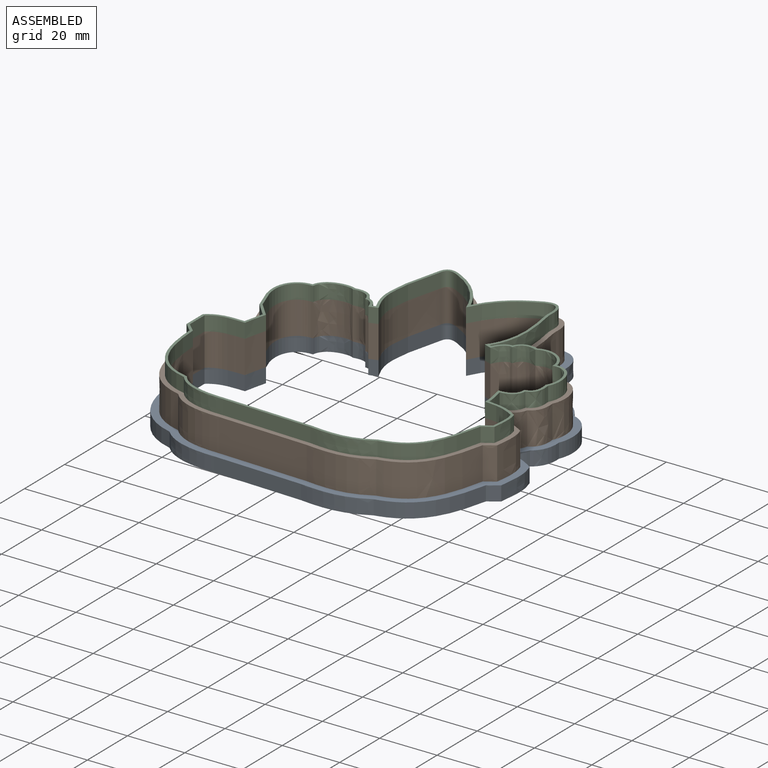
[diagram: assembled view]
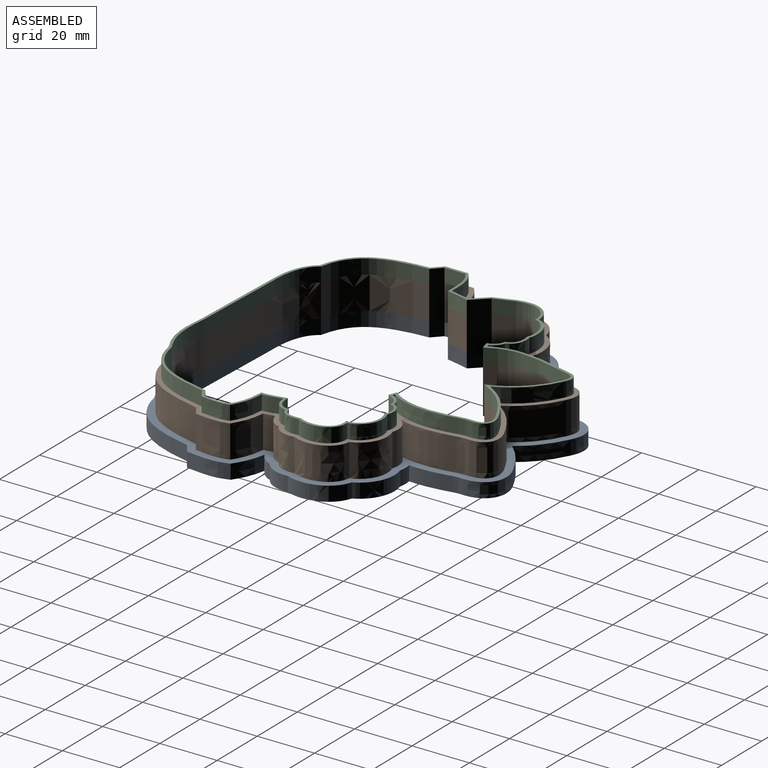
[diagram: assembled view, second angle]
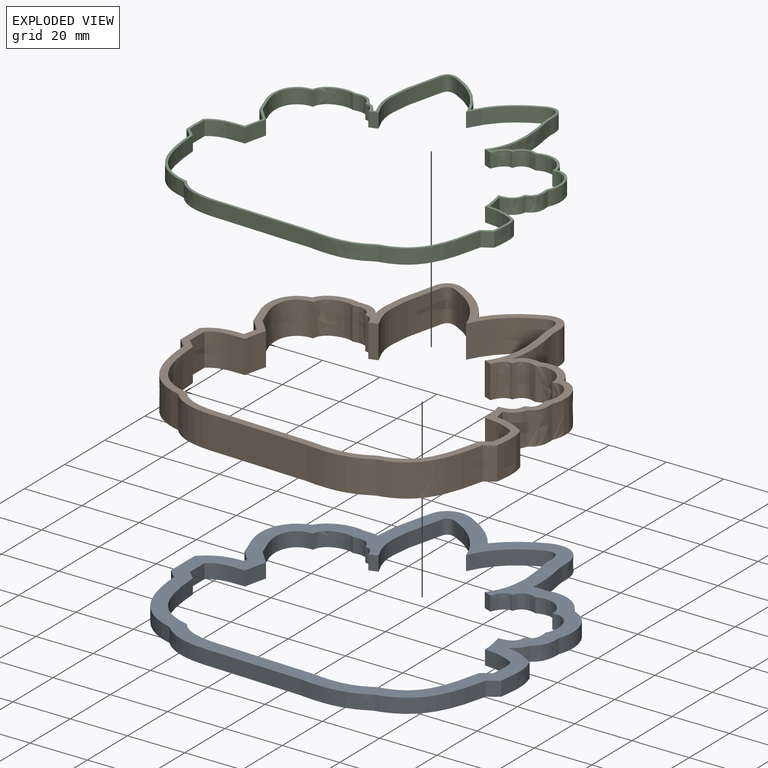
[diagram: exploded view]
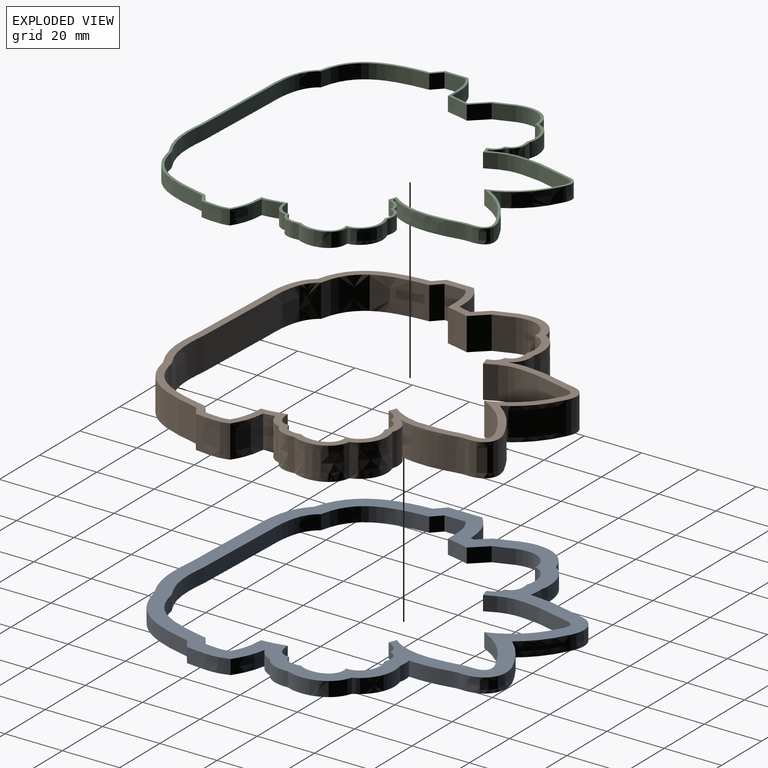
[diagram: exploded view, second angle]
ASSEMBLY  parts=3 mates=2
PART A: 67 faces, bbox 125.6x123.7x9.8 mm
  f0: plane 125.64x123.72mm, normal (0,0,1), area 2236mm2, adj f2,f3,f4,f5,f6,f7,f8,f9
  f1: plane 125.64x123.72mm, normal (0,0,-1), area 2236mm2, adj f2,f3,f4,f5,f6,f7,f8,f9
  f2: extruded ~28.55x18.44mm, area 186.6mm2, adj f0,f1,f3,f31
  f3: extruded ~20.02x6.33mm, area 109.9mm2, adj f0,f1,f2,f4
  f4: plane 31.02x5.08mm, normal (-0.04,-1,0), area 157.7mm2, adj f0,f1,f3,f5
  f5: extruded ~22.97x5.08mm, area 120.3mm2, adj f0,f1,f4,f6
  f6: extruded ~26.15x20.81mm, area 181.9mm2, adj f0,f1,f5,f7
  f7: extruded ~5.08x3.62mm, area 22.2mm2, adj f0,f1,f6,f8
  f8: extruded ~14.87x5.08mm, area 77.2mm2, adj f0,f1,f7,f9
  f9: extruded ~10.59x5.08mm, area 59mm2, adj f0,f1,f8,f10
  f10: extruded ~5.08x4.75mm, area 33.2mm2, adj f0,f1,f9,f11
  f11: extruded ~9.04x5.08mm, area 52.3mm2, adj f0,f1,f10,f12
  f12: extruded ~17.36x7.96mm, area 106.5mm2, adj f0,f1,f11,f13
  f13: extruded ~14.62x7.21mm, area 89.1mm2, adj f0,f1,f12,f14
  f14: extruded ~5.08x4.32mm, area 22.1mm2, adj f0,f1,f13,f15
  f15: extruded ~10.3x5.08mm, area 52.5mm2, adj f0,f1,f14,f16
  f16: extruded ~7.42x5.08mm, area 37.9mm2, adj f0,f1,f15,f17
  f17: extruded ~12.22x9.75mm, area 94.7mm2, adj f0,f1,f16,f18
  f18: extruded ~14.04x9.9mm, area 88mm2, adj f0,f1,f17,f19
  f19: extruded ~13.22x11.15mm, area 88.8mm2, adj f0,f1,f18,f20
  f20: extruded ~11.76x5.74mm, area 75.1mm2, adj f0,f1,f19,f21
  f21: extruded ~12.91x5.08mm, area 67.5mm2, adj f0,f1,f20,f22
  f22: extruded ~7.58x5.08mm, area 38.7mm2, adj f0,f1,f21,f23
  f23: extruded ~5.08x4.69mm, area 24.1mm2, adj f0,f1,f22,f24
  f24: extruded ~14.85x5.7mm, area 85.4mm2, adj f0,f1,f23,f25
  f25: extruded ~17.8x9.13mm, area 112.3mm2, adj f0,f1,f24,f26
  f26: plane 8.01x5.08mm, normal (-0.94,-0.34,0), area 43.3mm2, adj f0,f1,f25,f27
  f27: plane 5.08x3.98mm, normal (-0.73,-0.68,0), area 27.6mm2, adj f0,f1,f26,f28
  f28: extruded ~5.08x1.37mm, area 7.2mm2, adj f0,f1,f27,f29
  f29: extruded ~13.29x5.22mm, area 74.9mm2, adj f0,f1,f28,f30
  f30: plane 11.84x5.08mm, normal (-1,0,0), area 60.2mm2, adj f0,f1,f29,f31
  f31: plane 5.08x3.32mm, normal (-0.69,-0.72,0), area 23.4mm2, adj f0,f1,f2,f30
  f32: extruded ~26.31x16.39mm, area 172.7mm2, adj f0,f1,f33,f66
  f33: extruded ~17.21x5.78mm, area 96mm2, adj f0,f1,f32,f34
  f34: plane 31.32x5.08mm, normal (0.04,1,0), area 159.2mm2, adj f0,f1,f33,f35
  f35: extruded ~20.8x5.08mm, area 109.3mm2, adj f0,f1,f34,f36
  f36: extruded ~24.48x18.09mm, area 166.9mm2, adj f0,f1,f35,f37
  f37: extruded ~5.08x3.31mm, area 19.9mm2, adj f0,f1,f36,f38
  f38: extruded ~8.8x5.08mm, area 45mm2, adj f0,f1,f37,f39
  f39: extruded ~11.15x5.08mm, area 59.6mm2, adj f0,f1,f38,f40
  f40: extruded ~8.39x5.08mm, area 43.2mm2, adj f0,f1,f39,f41
  f41: extruded ~5.9x5.08mm, area 43.1mm2, adj f0,f1,f40,f42
  f42: extruded ~6.42x5.08mm, area 40.8mm2, adj f0,f1,f41,f43
  f43: extruded ~11.73x7.06mm, area 83.1mm2, adj f0,f1,f42,f44
  f44: extruded ~10.24x6.97mm, area 73mm2, adj f0,f1,f43,f45
  f45: extruded ~6.4x5.08mm, area 40mm2, adj f0,f1,f44,f46
  f46: extruded ~5.08x4.85mm, area 34.8mm2, adj f0,f1,f45,f47
  f47: plane 5.08x2.66mm, normal (-0.35,-0.94,0), area 14.4mm2, adj f0,f1,f46,f48
  f48: extruded ~20.46x5.08mm, area 109mm2, adj f0,f1,f47,f49
  f49: extruded ~8.26x5.08mm, area 42.4mm2, adj f0,f1,f48,f50
  f50: extruded ~5.18x5.08mm, area 42.6mm2, adj f0,f1,f49,f51
  f51: extruded ~16.55x15.32mm, area 117.2mm2, adj f0,f1,f50,f52
  f52: extruded ~16.68x14.88mm, area 116.7mm2, adj f0,f1,f51,f53
  f53: extruded ~5.08x4.63mm, area 29.4mm2, adj f0,f1,f52,f54
  f54: extruded ~12.35x5.08mm, area 64.6mm2, adj f0,f1,f53,f55
  f55: extruded ~17.89x5.08mm, area 93.7mm2, adj f0,f1,f54,f56
  f56: plane 5.08x2.98mm, normal (0.28,-0.96,0), area 15.8mm2, adj f0,f1,f55,f57
  f57: extruded ~5.08x3.75mm, area 28.7mm2, adj f0,f1,f56,f58
  f58: extruded ~6.73x5.08mm, area 43mm2, adj f0,f1,f57,f59
  f59: extruded ~10.53x5.32mm, area 67.1mm2, adj f0,f1,f58,f60
  f60: extruded ~11.56x7.72mm, area 82.6mm2, adj f0,f1,f59,f61
  f61: plane 6.86x5.08mm, normal (0.94,0.34,0), area 37.1mm2, adj f0,f1,f60,f62
  f62: plane 5.25x5.08mm, normal (0.73,0.68,0), area 36.3mm2, adj f0,f1,f61,f63
  f63: extruded ~7.87x5.08mm, area 41.1mm2, adj f0,f1,f62,f64
  f64: extruded ~12.33x5.08mm, area 65.5mm2, adj f0,f1,f63,f65
  f65: plane 7.31x5.08mm, normal (1,0,0), area 37.1mm2, adj f0,f1,f64,f66
  f66: plane 5.08x3.19mm, normal (0.69,0.72,0), area 22.5mm2, adj f0,f1,f32,f65
PART B: 69 faces, bbox 118.4x116.4x13.9 mm
  f0: plane 118.35x116.43mm, normal (0,0,1), area 1131.5mm2, adj f2,f3,f4,f5,f6,f7,f8,f9
  f1: plane 118.35x116.43mm, normal (0,0,-1), area 1131.5mm2, adj f2,f3,f4,f5,f6,f7,f8,f9
  f2: extruded ~27.44x17.38mm, area 403.8mm2, adj f0,f1,f3,f33
  f3: extruded ~18.65x11.43mm, area 231.9mm2, adj f0,f1,f2,f4
  f4: plane 31.17x11.43mm, normal (-0.04,-1,0), area 356.5mm2, adj f0,f1,f3,f5
  f5: extruded ~21.89x11.43mm, area 258.3mm2, adj f0,f1,f4,f6
  f6: extruded ~25.35x19.46mm, area 392.8mm2, adj f0,f1,f5,f7
  f7: extruded ~11.43x3.46mm, area 47.4mm2, adj f0,f1,f6,f8
  f8: extruded ~11.84x11.43mm, area 137.2mm2, adj f0,f1,f7,f9
  f9: extruded ~11.43x10.85mm, area 133.3mm2, adj f0,f1,f8,f10
  f10: extruded ~11.43x3.79mm, area 44mm2, adj f0,f1,f9,f11
  f11: extruded ~11.43x5.21mm, area 86.4mm2, adj f0,f1,f10,f12
  f12: extruded ~11.43x7.78mm, area 103.7mm2, adj f0,f1,f11,f13
  f13: extruded ~14.72x11.43mm, area 211.3mm2, adj f0,f1,f12,f14
  f14: extruded ~12.62x11.43mm, area 180.4mm2, adj f0,f1,f13,f15
  f15: extruded ~11.43x7.87mm, area 102.1mm2, adj f0,f1,f14,f16
  f16: extruded ~11.43x0.18mm, area 2mm2, adj f0,f1,f15,f17
  f17: extruded ~15.29x11.43mm, area 176.4mm2, adj f0,f1,f16,f18
  f18: extruded ~11.43x7.84mm, area 90.5mm2, adj f0,f1,f17,f19
  f19: extruded ~11.43x8.7mm, area 154mm2, adj f0,f1,f18,f20
  f20: extruded ~15.25x12.03mm, area 225mm2, adj f0,f1,f19,f21
  f21: extruded ~14.1x13.33mm, area 225.5mm2, adj f0,f1,f20,f22
  f22: extruded ~11.43x8.2mm, area 117.6mm2, adj f0,f1,f21,f23
  f23: extruded ~12.63x11.43mm, area 148.5mm2, adj f0,f1,f22,f24
  f24: extruded ~12.85x11.43mm, area 147.8mm2, adj f0,f1,f23,f25
  f25: extruded ~11.43x8.08mm, area 107.4mm2, adj f0,f1,f24,f26
  f26: extruded ~12.89x11.43mm, area 171.5mm2, adj f0,f1,f25,f27
  f27: extruded ~14.77x11.43mm, area 217.6mm2, adj f0,f1,f26,f28
  f28: plane 11.43x7.44mm, normal (-0.94,-0.34,0), area 90.5mm2, adj f0,f1,f27,f29
  f29: plane 11.43x4.63mm, normal (-0.73,-0.68,0), area 72mm2, adj f0,f1,f28,f30
  f30: extruded ~11.43x4.62mm, area 54.4mm2, adj f0,f1,f29,f31
  f31: extruded ~12.76x11.43mm, area 157.6mm2, adj f0,f1,f30,f32
  f32: plane 11.43x9.58mm, normal (-1,0,0), area 109.5mm2, adj f0,f1,f31,f33
  f33: plane 11.43x3.25mm, normal (-0.69,-0.72,0), area 51.5mm2, adj f0,f1,f2,f32
  f34: extruded ~26.31x16.39mm, area 388.6mm2, adj f0,f1,f35,f68
  f35: extruded ~17.21x11.43mm, area 216mm2, adj f0,f1,f34,f36
  f36: plane 31.32x11.43mm, normal (0.04,1,0), area 358.2mm2, adj f0,f1,f35,f37
  f37: extruded ~20.8x11.43mm, area 245.9mm2, adj f0,f1,f36,f38
  f38: extruded ~24.48x18.09mm, area 375.5mm2, adj f0,f1,f37,f39
  f39: extruded ~11.43x3.31mm, area 44.8mm2, adj f0,f1,f38,f40
  f40: extruded ~11.43x8.8mm, area 101.3mm2, adj f0,f1,f39,f41
  f41: extruded ~11.43x11.15mm, area 134mm2, adj f0,f1,f40,f42
  f42: extruded ~11.43x8.39mm, area 97.2mm2, adj f0,f1,f41,f43
  f43: extruded ~11.43x5.9mm, area 97mm2, adj f0,f1,f42,f44
  f44: extruded ~11.43x6.42mm, area 91.8mm2, adj f0,f1,f43,f45
  f45: extruded ~11.73x11.43mm, area 186.9mm2, adj f0,f1,f44,f46
  f46: extruded ~11.43x10.24mm, area 164.2mm2, adj f0,f1,f45,f47
  f47: extruded ~11.43x6.4mm, area 89.9mm2, adj f0,f1,f46,f48
  f48: extruded ~11.43x4.85mm, area 78.3mm2, adj f0,f1,f47,f49
  f49: plane 11.43x2.66mm, normal (-0.35,-0.94,0), area 32.4mm2, adj f0,f1,f48,f50
  f50: extruded ~20.46x11.43mm, area 245.2mm2, adj f0,f1,f49,f51
  f51: extruded ~11.43x8.26mm, area 95.3mm2, adj f0,f1,f50,f52
  f52: extruded ~11.43x5.18mm, area 95.9mm2, adj f0,f1,f51,f53
  f53: extruded ~16.55x15.32mm, area 263.8mm2, adj f0,f1,f52,f54
  f54: extruded ~16.68x14.88mm, area 262.6mm2, adj f0,f1,f53,f55
  f55: extruded ~11.43x4.63mm, area 66.1mm2, adj f0,f1,f54,f56
  f56: extruded ~12.35x11.43mm, area 145.2mm2, adj f0,f1,f55,f57
  f57: extruded ~17.89x11.43mm, area 210.9mm2, adj f0,f1,f56,f58
  f58: plane 11.43x2.98mm, normal (0.28,-0.96,0), area 35.5mm2, adj f0,f1,f57,f59
  f59: extruded ~11.43x3.75mm, area 64.7mm2, adj f0,f1,f58,f60
  f60: extruded ~11.43x6.73mm, area 96.7mm2, adj f0,f1,f59,f61
  f61: extruded ~11.43x10.53mm, area 150.9mm2, adj f0,f1,f60,f62
  f62: extruded ~11.56x11.43mm, area 185.8mm2, adj f0,f1,f61,f63
  f63: plane 11.43x6.86mm, normal (0.94,0.34,0), area 83.5mm2, adj f0,f1,f62,f64
  f64: plane 11.43x5.25mm, normal (0.73,0.68,0), area 81.8mm2, adj f0,f1,f63,f65
  f65: extruded ~11.43x7.87mm, area 92.4mm2, adj f0,f1,f64,f66
  f66: extruded ~12.33x11.43mm, area 147.3mm2, adj f0,f1,f65,f67
  f67: plane 11.43x7.31mm, normal (1,0,0), area 83.6mm2, adj f0,f1,f66,f68
  f68: plane 11.43x3.19mm, normal (0.69,0.72,0), area 50.6mm2, adj f0,f1,f34,f67
PART C: 72 faces, bbox 115.5x113.6x8.1 mm
  f0: plane 115.52x113.59mm, normal (0,0,1), area 400.7mm2, adj f2,f3,f4,f5,f6,f7,f8,f9
  f1: plane 115.52x113.59mm, normal (0,0,-1), area 400.7mm2, adj f2,f3,f4,f5,f6,f7,f8,f9
  f2: extruded ~26.7x16.73mm, area 175mm2, adj f0,f1,f3,f36
  f3: extruded ~17.72x5.87mm, area 98.5mm2, adj f0,f1,f2,f4
  f4: plane 31.27x5.08mm, normal (-0.04,-1,0), area 158.9mm2, adj f0,f1,f3,f5
  f5: extruded ~21.18x5.08mm, area 111.2mm2, adj f0,f1,f4,f6
  f6: extruded ~24.8x18.57mm, area 169.6mm2, adj f0,f1,f5,f7
  f7: extruded ~5.08x3.36mm, area 20.2mm2, adj f0,f1,f6,f8
  f8: extruded ~9.86x5.08mm, area 50.5mm2, adj f0,f1,f7,f9
  f9: extruded ~11x5.08mm, area 59.2mm2, adj f0,f1,f8,f10
  f10: extruded ~6.69x5.08mm, area 34.5mm2, adj f0,f1,f9,f11
  f11: extruded ~5.71x5.08mm, area 41.4mm2, adj f0,f1,f10,f12
  f12: extruded ~6.91x5.08mm, area 42.4mm2, adj f0,f1,f11,f13
  f13: extruded ~12.81x7.03mm, area 86.3mm2, adj f0,f1,f12,f14
  f14: extruded ~11.16x6.83mm, area 75mm2, adj f0,f1,f13,f15
  f15: extruded ~6.91x5.08mm, area 41.4mm2, adj f0,f1,f14,f16
  f16: extruded ~5.08x4.78mm, area 32.8mm2, adj f0,f1,f15,f17
  f17: plane 5.08x0.73mm, normal (0.35,0.94,0), area 4mm2, adj f0,f1,f16,f18
  f18: extruded ~20.16x5.08mm, area 106.4mm2, adj f0,f1,f17,f19
  f19: extruded ~8.11x5.08mm, area 41.6mm2, adj f0,f1,f18,f20
  f20: extruded ~6.41x5.39mm, area 51.7mm2, adj f0,f1,f19,f21
  f21: extruded ~16.07x13.96mm, area 110.3mm2, adj f0,f1,f20,f22
  f22: extruded ~15.31x14.63mm, area 110mm2, adj f0,f1,f21,f23
  f23: extruded ~5.88x5.08mm, area 37.4mm2, adj f0,f1,f22,f24
  f24: extruded ~12.45x5.08mm, area 65.1mm2, adj f0,f1,f23,f25
  f25: extruded ~17.46x5.08mm, area 91mm2, adj f0,f1,f24,f26
  f26: plane 5.08x1.09mm, normal (-0.28,0.96,0), area 5.8mm2, adj f0,f1,f25,f27
  f27: extruded ~5.08x3.57mm, area 26.5mm2, adj f0,f1,f26,f28
  f28: extruded ~7.24x5.08mm, area 44.9mm2, adj f0,f1,f27,f29
  f29: extruded ~11.45x5.31mm, area 70.3mm2, adj f0,f1,f28,f30
  f30: extruded ~12.71x7.86mm, area 87.3mm2, adj f0,f1,f29,f31
  f31: plane 7.06x5.08mm, normal (-0.94,-0.34,0), area 38.2mm2, adj f0,f1,f30,f32
  f32: plane 5.08x5.04mm, normal (-0.73,-0.68,0), area 34.8mm2, adj f0,f1,f31,f33
  f33: extruded ~6.74x5.08mm, area 35.2mm2, adj f0,f1,f32,f34
  f34: extruded ~12.46x5.08mm, area 66.8mm2, adj f0,f1,f33,f35
  f35: plane 8.1x5.08mm, normal (-1,0,0), area 41.2mm2, adj f0,f1,f34,f36
  f36: plane 5.08x3.21mm, normal (-0.69,-0.72,0), area 22.6mm2, adj f0,f1,f2,f35
  f37: extruded ~26.31x16.39mm, area 172.7mm2, adj f0,f1,f38,f71
  f38: extruded ~17.21x5.78mm, area 96mm2, adj f0,f1,f37,f39
  f39: plane 31.32x5.08mm, normal (0.04,1,0), area 159.2mm2, adj f0,f1,f38,f40
  f40: extruded ~20.8x5.08mm, area 109.3mm2, adj f0,f1,f39,f41
  f41: extruded ~24.48x18.09mm, area 166.9mm2, adj f0,f1,f40,f42
  f42: extruded ~5.08x3.31mm, area 19.9mm2, adj f0,f1,f41,f43
  f43: extruded ~8.8x5.08mm, area 45mm2, adj f0,f1,f42,f44
  f44: extruded ~11.15x5.08mm, area 59.6mm2, adj f0,f1,f43,f45
  f45: extruded ~8.39x5.08mm, area 43.2mm2, adj f0,f1,f44,f46
  f46: extruded ~5.9x5.08mm, area 43.1mm2, adj f0,f1,f45,f47
  f47: extruded ~6.42x5.08mm, area 40.8mm2, adj f0,f1,f46,f48
  f48: extruded ~11.73x7.06mm, area 83.1mm2, adj f0,f1,f47,f49
  f49: extruded ~10.24x6.97mm, area 73mm2, adj f0,f1,f48,f50
  f50: extruded ~6.4x5.08mm, area 40mm2, adj f0,f1,f49,f51
  f51: extruded ~5.08x4.85mm, area 34.8mm2, adj f0,f1,f50,f52
  f52: plane 5.08x2.66mm, normal (-0.35,-0.94,0), area 14.4mm2, adj f0,f1,f51,f53
  f53: extruded ~20.46x5.08mm, area 109mm2, adj f0,f1,f52,f54
  f54: extruded ~8.26x5.08mm, area 42.4mm2, adj f0,f1,f53,f55
  f55: extruded ~5.18x5.08mm, area 42.6mm2, adj f0,f1,f54,f56
  f56: extruded ~16.55x15.32mm, area 117.2mm2, adj f0,f1,f55,f57
  f57: extruded ~16.68x14.88mm, area 116.7mm2, adj f0,f1,f56,f58
  f58: extruded ~5.08x4.63mm, area 29.4mm2, adj f0,f1,f57,f59
  f59: extruded ~12.35x5.08mm, area 64.6mm2, adj f0,f1,f58,f60
  f60: extruded ~17.89x5.08mm, area 93.7mm2, adj f0,f1,f59,f61
  f61: plane 5.08x2.98mm, normal (0.28,-0.96,0), area 15.8mm2, adj f0,f1,f60,f62
  f62: extruded ~5.08x3.75mm, area 28.7mm2, adj f0,f1,f61,f63
  f63: extruded ~6.73x5.08mm, area 43mm2, adj f0,f1,f62,f64
  f64: extruded ~10.53x5.32mm, area 67.1mm2, adj f0,f1,f63,f65
  f65: extruded ~11.56x7.72mm, area 82.6mm2, adj f0,f1,f64,f66
  f66: plane 6.86x5.08mm, normal (0.94,0.34,0), area 37.1mm2, adj f0,f1,f65,f67
  f67: plane 5.25x5.08mm, normal (0.73,0.68,0), area 36.3mm2, adj f0,f1,f66,f68
  f68: extruded ~7.87x5.08mm, area 41.1mm2, adj f0,f1,f67,f69
  f69: extruded ~12.33x5.08mm, area 65.5mm2, adj f0,f1,f68,f70
  f70: plane 7.31x5.08mm, normal (1,0,0), area 37.1mm2, adj f0,f1,f69,f71
  f71: plane 5.08x3.19mm, normal (0.69,0.72,0), area 22.5mm2, adj f0,f1,f37,f70
PLACE A at identity
PLACE B t=(238.49,-1.9,5.08)mm
PLACE C t=(117.12,-5.09,16.51)mm
MATE fastened C.f1 <-> B.f0  axis (0,0,1) through (137.27,24.79,16.51)mm
MATE fastened B.f1 <-> A.f0  axis (0,0,1) through (137.27,24.79,5.08)mm
